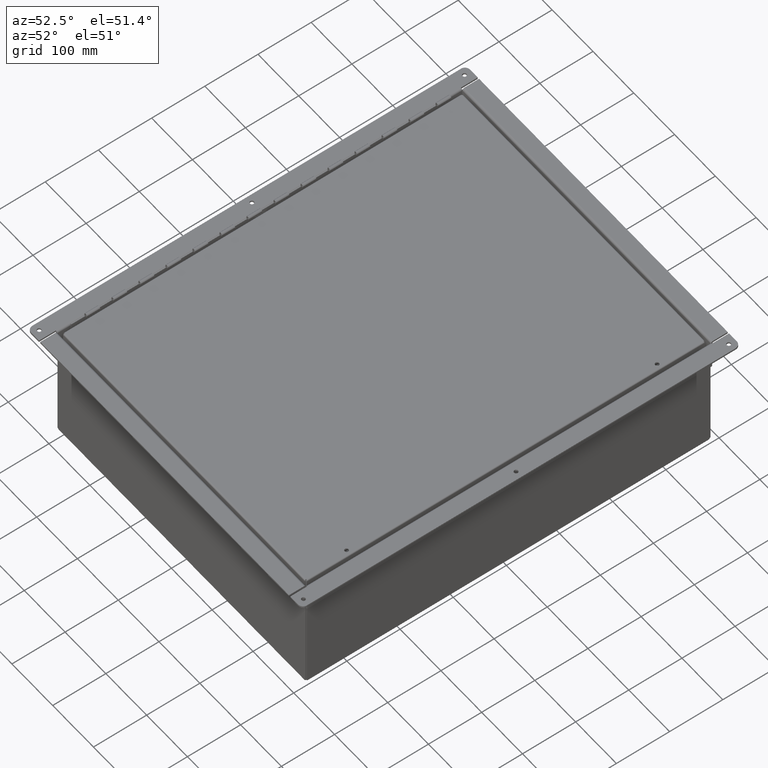
[diagram: clean part render]
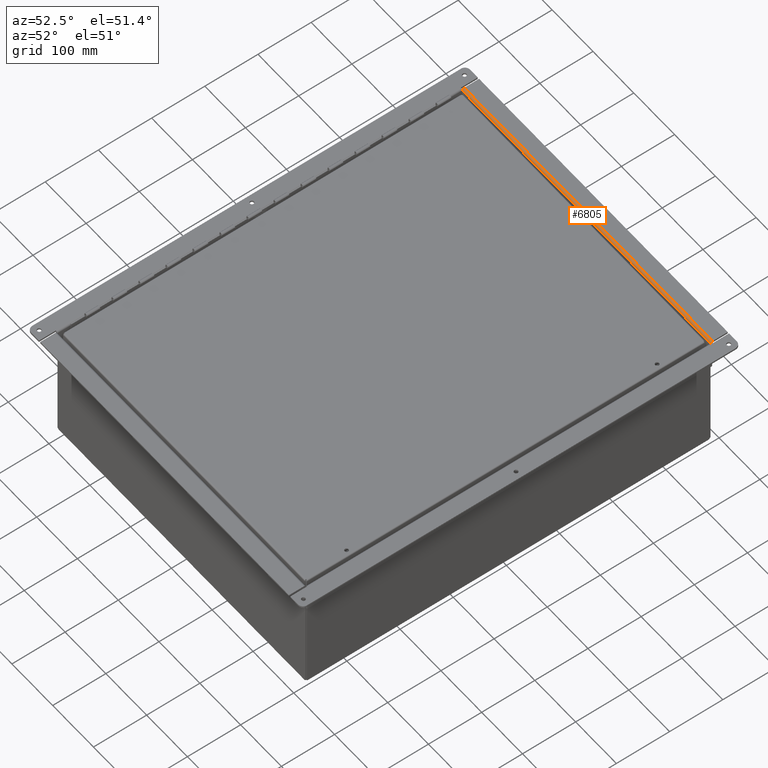
[diagram: same view with one face highlighted and labeled with its STEP entity id]
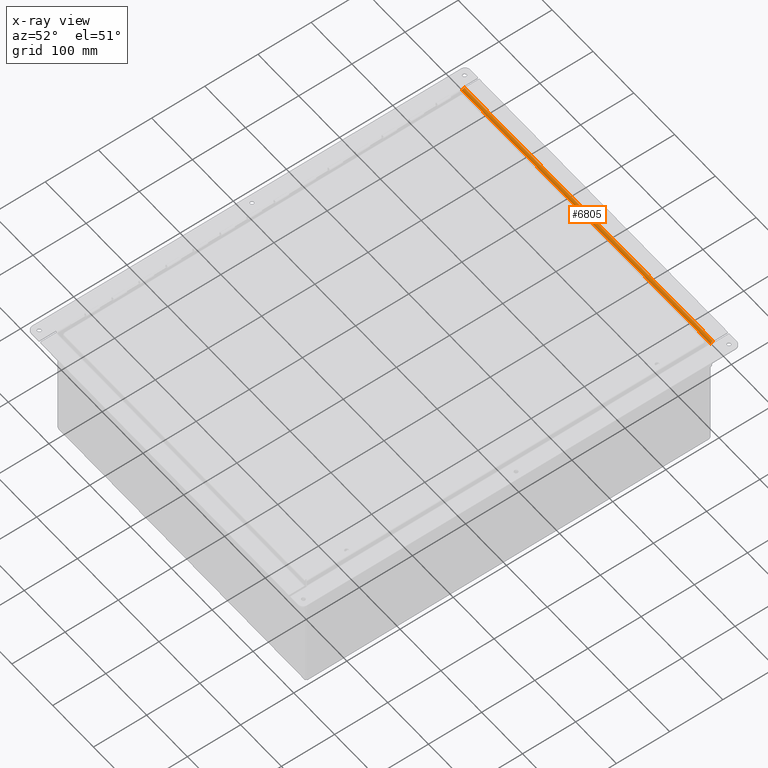
[diagram: x-ray of the same camera — body ghosted, the highlighted face saturated]
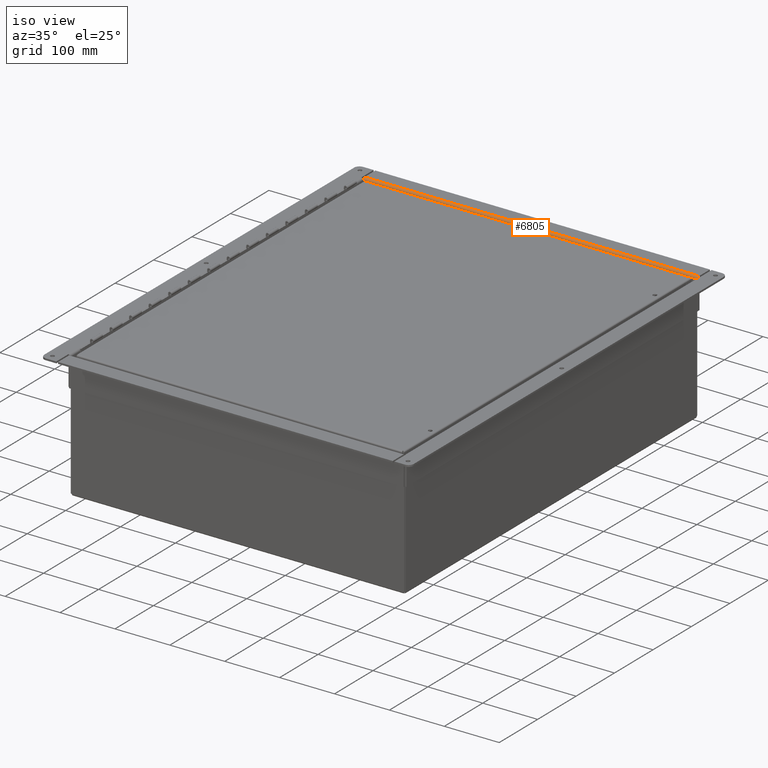
[diagram: same view with one face highlighted and labeled with its STEP entity id]
A machine part, auxiliary view. The second image highlights one B-rep face of the part: STEP entity #6805.
The next image is the same camera in x-ray: the body ghosted, the highlighted face saturated — about 0% of this face is hidden behind the body in this view.
A second angle (iso view) of the same face is appended — the face is thin or edge-on in the first view.
In plain terms, the highlighted cylindrical surface (edge-blend (fillet) strip) has radius 3.9688 mm, axis along (1, 0, -0).
Its self-contained STEP definition (entity closure, byte-faithful):
#290=CIRCLE($,#7343,0.15625);
#291=CIRCLE($,#7344,0.15625);
#1019=FACE_OUTER_BOUND($,#1463,.T.);
#1463=EDGE_LOOP($,(#5793,#5794,#5795,#5796));
#2109=LINE($,#12095,#2737);
#2110=LINE($,#12099,#2738);
#2737=VECTOR($,#8987,24.);
#2738=VECTOR($,#8990,24.);
#3257=VERTEX_POINT($,#12093);
#3258=VERTEX_POINT($,#12094);
#3259=VERTEX_POINT($,#12096);
#3260=VERTEX_POINT($,#12098);
#4109=EDGE_CURVE($,#3257,#3258,#2109,.T.);
#4110=EDGE_CURVE($,#3259,#3257,#290,.T.);
#4111=EDGE_CURVE($,#3260,#3259,#2110,.T.);
#4112=EDGE_CURVE($,#3258,#3260,#291,.T.);
#5793=ORIENTED_EDGE($,*,*,#4109,.F.);
#5794=ORIENTED_EDGE($,*,*,#4110,.F.);
#5795=ORIENTED_EDGE($,*,*,#4111,.F.);
#5796=ORIENTED_EDGE($,*,*,#4112,.F.);
#6047=CYLINDRICAL_SURFACE($,#7342,0.15625);
#6805=ADVANCED_FACE($,(#1019),#6047,.T.);
#7342=AXIS2_PLACEMENT_3D($,#12092,#8985,#8986);
#7343=AXIS2_PLACEMENT_3D($,#12097,#8988,#8989);
#7344=AXIS2_PLACEMENT_3D($,#12100,#8991,#8992);
#8985=DIRECTION('center_axis',(1.8576566356917E-016,-1.,0.));
#8986=DIRECTION('ref_axis',(0.,0.,1.));
#8987=DIRECTION($,(-1.77465492903003E-016,1.,-1.52523038029702E-032));
#8988=DIRECTION('center_axis',(1.8576566356917E-016,-1.,0.));
#8989=DIRECTION('ref_axis',(7.60896157979319E-014,0.,1.));
#8990=DIRECTION($,(1.89408127560722E-016,-1.,0.));
#8991=DIRECTION('center_axis',(-1.8576566356917E-016,1.,0.));
#8992=DIRECTION('ref_axis',(-1.,0.,6.99353086378052E-017));
#12092=CARTESIAN_POINT('Origin',(-0.531250000000003,0.,-0.0312500000000001));
#12093=CARTESIAN_POINT('',(-0.687500000000001,-12.,-0.0312499999999998));
#12094=CARTESIAN_POINT('',(-0.687500000000005,12.,-0.0312499999999998));
#12095=CARTESIAN_POINT($,(-0.687500000000003,6.69498989177175E-017,-0.0312499999999999));
#12096=CARTESIAN_POINT('',(-0.531249999999998,-12.,0.125));
#12097=CARTESIAN_POINT('Origin',(-0.531250000000001,-12.,-0.0312500000000001));
#12098=CARTESIAN_POINT('',(-0.531250000000003,12.,0.125));
#12099=CARTESIAN_POINT($,(-0.531250000000002,5.99999999999998,0.125));
#12100=CARTESIAN_POINT('Origin',(-0.531250000000005,12.,-0.0312500000000001));